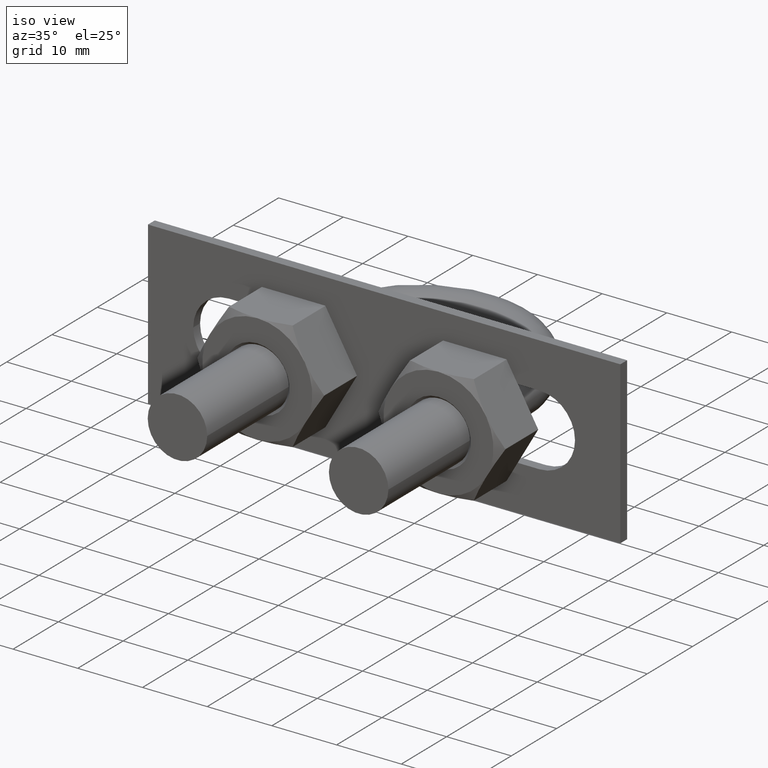
[diagram: clean part render]
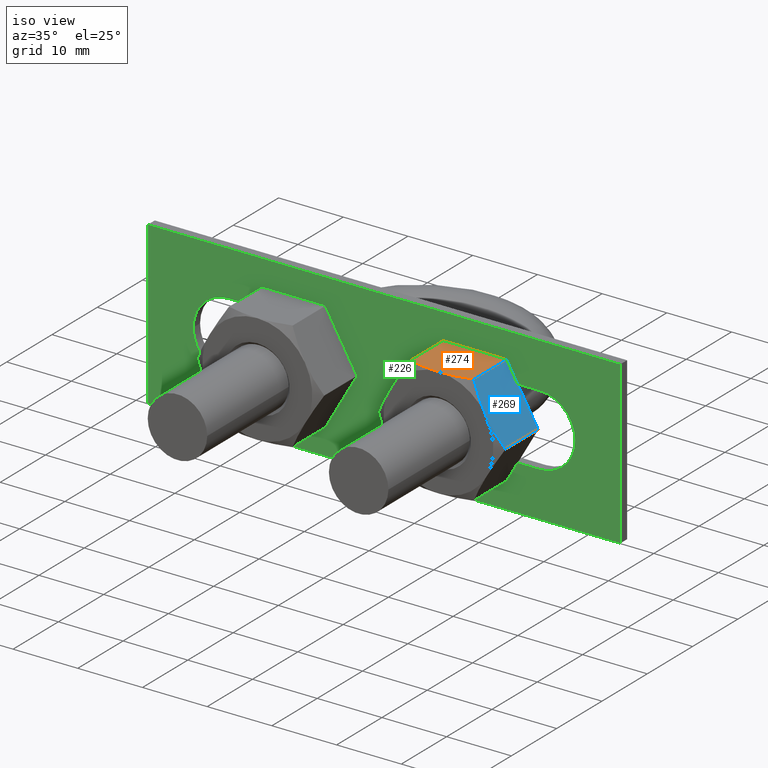
[diagram: same view with three faces highlighted in distinct colors, each labeled with its STEP entity id]
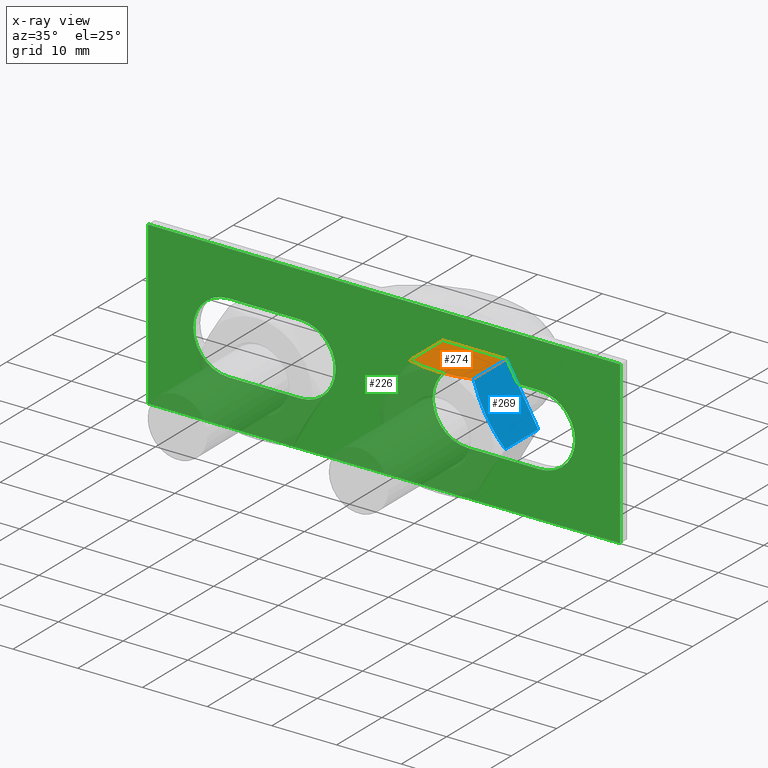
[diagram: x-ray of the same camera — body ghosted, the three highlighted faces saturated]
A machine part, iso view with three faces highlighted in distinct colors.
The next image is the same camera in x-ray (body ghosted, the three faces saturated) — at least one of them is partly hidden behind the body in this view.
Their STEP definitions:

[orange] entity #274 — the highlighted planar face has unit normal (0, -0, -1).
#274 = ADVANCED_FACE( '', ( #417 ), #418, .F. );
#417 = FACE_OUTER_BOUND( '', #737, .T. );
#418 = PLANE( '', #738 );
#737 = EDGE_LOOP( '', ( #1187, #1188, #1189, #1190, #1191 ) );
#738 = AXIS2_PLACEMENT_3D( '', #1192, #1193, #1194 );
#1187 = ORIENTED_EDGE( '', *, *, #1438, .F. );
#1188 = ORIENTED_EDGE( '', *, *, #1405, .F. );
#1189 = ORIENTED_EDGE( '', *, *, #1439, .F. );
#1190 = ORIENTED_EDGE( '', *, *, #1422, .F. );
#1191 = ORIENTED_EDGE( '', *, *, #1433, .F. );
#1192 = CARTESIAN_POINT( '', ( 9.09252271188818, -2.38000000000001, 8.50000000000000 ) );
#1193 = DIRECTION( '', ( 3.74915180455534E-033, -2.29561756065155E-049, -1.00000000000000 ) );
#1194 = DIRECTION( '', ( -6.12303176911189E-017, -1.00000000000000, 0.000000000000000 ) );
#1405 = EDGE_CURVE( '', #1634, #1637, #1638, .T. );
#1422 = EDGE_CURVE( '', #1666, #1668, #1669, .T. );
#1433 = EDGE_CURVE( '', #1687, #1666, #1689, .T. );
#1438 = EDGE_CURVE( '', #1637, #1687, #1696, .T. );
#1439 = EDGE_CURVE( '', #1668, #1634, #1697, .F. );
#1634 = VERTEX_POINT( '', #2034 );
#1637 = VERTEX_POINT( '', #2037 );
#1638 = B_SPLINE_CURVE_WITH_KNOTS( '', 3, ( #2038, #2039, #2040, #2041, #2042, #2043 ), .UNSPECIFIED., .F., .F., ( 4, 2, 4 ), ( 0.0107224888714710, 0.0132032657403443, 0.0156840426092177 ), .UNSPECIFIED. );
#1666 = VERTEX_POINT( '', #2093 );
#1668 = VERTEX_POINT( '', #2095 );
#1669 = LINE( '', #2096, #2097 );
#1687 = VERTEX_POINT( '', #2119 );
#1689 = LINE( '', #2121, #2122 );
#1696 = B_SPLINE_CURVE_WITH_KNOTS( '', 3, ( #2142, #2143, #2144, #2145, #2146, #2147 ), .UNSPECIFIED., .F., .F., ( 4, 2, 4 ), ( 0.0156840426092177, 0.0181633795370703, 0.0206427164649230 ), .UNSPECIFIED. );
#1697 = LINE( '', #2148, #2149 );
#2034 = CARTESIAN_POINT( '', ( 18.8774993593029, -9.62944465005349, 8.50000000000000 ) );
#2037 = CARTESIAN_POINT( '', ( 14.0000000000000, -10.3800000000000, 8.50000000000000 ) );
#2038 = CARTESIAN_POINT( '', ( 18.8774993593029, -9.62944465005349, 8.50000000000000 ) );
#2039 = CARTESIAN_POINT( '', ( 18.0828739329411, -9.85777990695860, 8.50000000000000 ) );
#2040 = CARTESIAN_POINT( '', ( 17.2812026223240, -10.0463452882827, 8.50000000000000 ) );
#2041 = CARTESIAN_POINT( '', ( 15.6573811694461, -10.3078850822183, 8.50000000000000 ) );
#2042 = CARTESIAN_POINT( '', ( 14.8350787536116, -10.3800000000000, 8.50000000000000 ) );
#2043 = CARTESIAN_POINT( '', ( 14.0000000000000, -10.3800000000000, 8.50000000000000 ) );
#2093 = CARTESIAN_POINT( '', ( 9.12250064069712, -2.38000000000001, 8.50000000000000 ) );
#2095 = CARTESIAN_POINT( '', ( 18.8774993593029, -2.38000000000001, 8.50000000000000 ) );
#2096 = CARTESIAN_POINT( '', ( 4.20000000000000, -2.38000000000001, 8.50000000000000 ) );
#2097 = VECTOR( '', #2418, 1000.00000000000 );
#2119 = CARTESIAN_POINT( '', ( 9.12250064069712, -9.62944465005349, 8.50000000000000 ) );
#2121 = CARTESIAN_POINT( '', ( 9.12250064069712, -2.38000000000001, 8.50000000000000 ) );
#2122 = VECTOR( '', #2441, 1000.00000000000 );
#2142 = CARTESIAN_POINT( '', ( 14.0000000000000, -10.3800000000000, 8.50000000000000 ) );
#2143 = CARTESIAN_POINT( '', ( 13.1654059591282, -10.3800000000000, 8.50000000000000 ) );
#2144 = CARTESIAN_POINT( '', ( 12.3409017267985, -10.3076895388738, 8.50000000000000 ) );
#2145 = CARTESIAN_POINT( '', ( 10.7171925770404, -10.0460056252267, 8.50000000000000 ) );
#2146 = CARTESIAN_POINT( '', ( 9.91614218777279, -9.85749718969067, 8.50000000000000 ) );
#2147 = CARTESIAN_POINT( '', ( 9.12250064069712, -9.62944465005349, 8.50000000000000 ) );
#2148 = CARTESIAN_POINT( '', ( 18.8774993593029, -2.38000000000001, 8.50000000000000 ) );
#2149 = VECTOR( '', #2446, 1000.00000000000 );
#2418 = DIRECTION( '', ( 1.00000000000000, -6.12303176911189E-017, 3.74915180455534E-033 ) );
#2441 = DIRECTION( '', ( 6.12303176911189E-017, 1.00000000000000, -4.95179021115217E-066 ) );
#2446 = DIRECTION( '', ( 6.12303176911189E-017, 1.00000000000000, -4.95179021115217E-066 ) );

[blue] entity #269 — the highlighted planar face has unit normal (-0.866, 0, -0.5).
#269 = ADVANCED_FACE( '', ( #406 ), #407, .F. );
#406 = FACE_OUTER_BOUND( '', #726, .T. );
#407 = PLANE( '', #727 );
#726 = EDGE_LOOP( '', ( #1142, #1143, #1144, #1145, #1146 ) );
#727 = AXIS2_PLACEMENT_3D( '', #1147, #1148, #1149 );
#1142 = ORIENTED_EDGE( '', *, *, #1407, .F. );
#1143 = ORIENTED_EDGE( '', *, *, #1414, .F. );
#1144 = ORIENTED_EDGE( '', *, *, #1415, .F. );
#1145 = ORIENTED_EDGE( '', *, *, #1416, .F. );
#1146 = ORIENTED_EDGE( '', *, *, #1417, .F. );
#1147 = CARTESIAN_POINT( '', ( 18.9074772881118, -2.38000000000001, 8.50000000000000 ) );
#1148 = DIRECTION( '', ( -0.866025403784439, 5.30270106023007E-017, -0.500000000000000 ) );
#1149 = DIRECTION( '', ( -0.500000000000000, 3.06151588455594E-017, 0.866025403784439 ) );
#1407 = EDGE_CURVE( '', #1639, #1635, #1641, .T. );
#1414 = EDGE_CURVE( '', #1653, #1639, #1654, .T. );
#1415 = EDGE_CURVE( '', #1655, #1653, #1656, .F. );
#1416 = EDGE_CURVE( '', #1657, #1655, #1658, .T. );
#1417 = EDGE_CURVE( '', #1635, #1657, #1659, .T. );
#1635 = VERTEX_POINT( '', #2035 );
#1639 = VERTEX_POINT( '', #2044 );
#1641 = B_SPLINE_CURVE_WITH_KNOTS( '', 3, ( #2046, #2047, #2048, #2049, #2050, #2051, #2052, #2053 ), .UNSPECIFIED., .F., .F., ( 4, 2, 2, 4 ), ( 0.00493506423428099, 0.00616384870526321, 0.00739263317624543, 0.00985020211820987 ), .UNSPECIFIED. );
#1653 = VERTEX_POINT( '', #2065 );
#1654 = B_SPLINE_CURVE_WITH_KNOTS( '', 3, ( #2066, #2067, #2068, #2069, #2070, #2071 ), .UNSPECIFIED., .F., .F., ( 4, 2, 4 ), ( 4.83064900407440E-007, 0.00246777364959070, 0.00493506423428099 ), .UNSPECIFIED. );
#1655 = VERTEX_POINT( '', #2072 );
#1656 = LINE( '', #2073, #2074 );
#1657 = VERTEX_POINT( '', #2075 );
#1658 = LINE( '', #2076, #2077 );
#1659 = LINE( '', #2078, #2079 );
#2035 = CARTESIAN_POINT( '', ( 18.9224662525163, -9.62944465005349, 8.47403835209862 ) );
#2044 = CARTESIAN_POINT( '', ( 21.3612159321677, -10.3800000000000, 4.25000000000000 ) );
#2046 = CARTESIAN_POINT( '', ( 21.3612159321677, -10.3800000000000, 4.25000000000000 ) );
#2047 = CARTESIAN_POINT( '', ( 21.1543614605610, -10.3800000000000, 4.60828245459559 ) );
#2048 = CARTESIAN_POINT( '', ( 20.9464724694540, -10.3622887918237, 4.96835674952724 ) );
#2049 = CARTESIAN_POINT( '', ( 20.5352159436566, -10.2936978063788, 5.68067394715264 ) );
#2050 = CARTESIAN_POINT( '', ( 20.3309547652762, -10.2428883495806, 6.03446468612131 ) );
#2051 = CARTESIAN_POINT( '', ( 19.7217813693342, -10.0468505986087, 7.08958395851212 ) );
#2052 = CARTESIAN_POINT( '', ( 19.3204658996231, -9.85817468726450, 7.78468274191512 ) );
#2053 = CARTESIAN_POINT( '', ( 18.9224662525163, -9.62944465005349, 8.47403835209862 ) );
#2065 = CARTESIAN_POINT( '', ( 23.7999656118192, -9.62944465005349, 0.0259616479013807 ) );
#2066 = CARTESIAN_POINT( '', ( 23.7999656118192, -9.62944465005349, 0.0259616479013786 ) );
#2067 = CARTESIAN_POINT( '', ( 23.4009132475383, -9.85877968287227, 0.717140617716312 ) );
#2068 = CARTESIAN_POINT( '', ( 22.9989787792964, -10.0475474634560, 1.41331153802454 ) );
#2069 = CARTESIAN_POINT( '', ( 22.1868332408957, -10.3085851459414, 2.81998887367487 ) );
#2070 = CARTESIAN_POINT( '', ( 21.7765614237886, -10.3800000000000, 3.53060050581790 ) );
#2071 = CARTESIAN_POINT( '', ( 21.3612159321677, -10.3800000000000, 4.25000000000000 ) );
#2072 = CARTESIAN_POINT( '', ( 23.7999656118192, -2.38000000000001, 0.0259616479013815 ) );
#2073 = CARTESIAN_POINT( '', ( 23.7999656118192, -2.38000000000001, 0.0259616479013807 ) );
#2074 = VECTOR( '', #2406, 1000.00000000000 );
#2075 = CARTESIAN_POINT( '', ( 18.9224662525163, -2.38000000000001, 8.47403835209862 ) );
#2076 = CARTESIAN_POINT( '', ( 18.9112159321677, -2.38000000000001, 8.49352447854375 ) );
#2077 = VECTOR( '', #2407, 1000.00000000000 );
#2078 = CARTESIAN_POINT( '', ( 18.9224662525163, -2.38000000000001, 8.47403835209862 ) );
#2079 = VECTOR( '', #2408, 1000.00000000000 );
#2406 = DIRECTION( '', ( 6.12303176911189E-017, 1.00000000000000, -4.95179021115217E-066 ) );
#2407 = DIRECTION( '', ( 0.500000000000000, -3.06151588455594E-017, -0.866025403784439 ) );
#2408 = DIRECTION( '', ( 6.12303176911189E-017, 1.00000000000000, -4.95179021115217E-066 ) );

[green] entity #226 — the highlighted planar face has unit normal (0, -1, 0).
#226 = ADVANCED_FACE( '', ( #310, #311, #312 ), #313, .T. );
#310 = FACE_OUTER_BOUND( '', #630, .T. );
#311 = FACE_BOUND( '', #631, .T. );
#312 = FACE_BOUND( '', #632, .T. );
#313 = PLANE( '', #633 );
#630 = EDGE_LOOP( '', ( #802, #803, #804, #805 ) );
#631 = EDGE_LOOP( '', ( #806, #807, #808, #809, #810, #811 ) );
#632 = EDGE_LOOP( '', ( #812, #813, #814, #815, #816, #817 ) );
#633 = AXIS2_PLACEMENT_3D( '', #818, #819, #820 );
#802 = ORIENTED_EDGE( '', *, *, #1304, .T. );
#803 = ORIENTED_EDGE( '', *, *, #1305, .T. );
#804 = ORIENTED_EDGE( '', *, *, #1306, .T. );
#805 = ORIENTED_EDGE( '', *, *, #1307, .T. );
#806 = ORIENTED_EDGE( '', *, *, #1308, .F. );
#807 = ORIENTED_EDGE( '', *, *, #1309, .F. );
#808 = ORIENTED_EDGE( '', *, *, #1310, .F. );
#809 = ORIENTED_EDGE( '', *, *, #1311, .F. );
#810 = ORIENTED_EDGE( '', *, *, #1312, .F. );
#811 = ORIENTED_EDGE( '', *, *, #1313, .F. );
#812 = ORIENTED_EDGE( '', *, *, #1314, .F. );
#813 = ORIENTED_EDGE( '', *, *, #1315, .F. );
#814 = ORIENTED_EDGE( '', *, *, #1316, .F. );
#815 = ORIENTED_EDGE( '', *, *, #1317, .F. );
#816 = ORIENTED_EDGE( '', *, *, #1318, .F. );
#817 = ORIENTED_EDGE( '', *, *, #1319, .F. );
#818 = CARTESIAN_POINT( '', ( -36.5000000000000, -2.38000000000000, -12.5000000000000 ) );
#819 = DIRECTION( '', ( 0.000000000000000, -1.00000000000000, 6.12303176911189E-017 ) );
#820 = DIRECTION( '', ( 0.000000000000000, -6.12303176911189E-017, -1.00000000000000 ) );
#1304 = EDGE_CURVE( '', #1468, #1469, #1470, .T. );
#1305 = EDGE_CURVE( '', #1469, #1471, #1472, .T. );
#1306 = EDGE_CURVE( '', #1471, #1473, #1474, .T. );
#1307 = EDGE_CURVE( '', #1473, #1468, #1475, .T. );
#1308 = EDGE_CURVE( '', #1476, #1477, #1478, .T. );
#1309 = EDGE_CURVE( '', #1479, #1476, #1480, .T. );
#1310 = EDGE_CURVE( '', #1481, #1479, #1482, .T. );
#1311 = EDGE_CURVE( '', #1483, #1481, #1484, .T. );
#1312 = EDGE_CURVE( '', #1485, #1483, #1486, .T. );
#1313 = EDGE_CURVE( '', #1477, #1485, #1487, .T. );
#1314 = EDGE_CURVE( '', #1488, #1489, #1490, .T. );
#1315 = EDGE_CURVE( '', #1491, #1488, #1492, .T. );
#1316 = EDGE_CURVE( '', #1493, #1491, #1494, .T. );
#1317 = EDGE_CURVE( '', #1495, #1493, #1496, .T. );
#1318 = EDGE_CURVE( '', #1497, #1495, #1498, .T. );
#1319 = EDGE_CURVE( '', #1489, #1497, #1499, .T. );
#1468 = VERTEX_POINT( '', #1750 );
#1469 = VERTEX_POINT( '', #1751 );
#1470 = LINE( '', #1752, #1753 );
#1471 = VERTEX_POINT( '', #1754 );
#1472 = LINE( '', #1755, #1756 );
#1473 = VERTEX_POINT( '', #1757 );
#1474 = LINE( '', #1758, #1759 );
#1475 = LINE( '', #1760, #1761 );
#1476 = VERTEX_POINT( '', #1762 );
#1477 = VERTEX_POINT( '', #1763 );
#1478 = CIRCLE( '', #1764, 5.50000000000000 );
#1479 = VERTEX_POINT( '', #1765 );
#1480 = CIRCLE( '', #1766, 5.50000000000000 );
#1481 = VERTEX_POINT( '', #1767 );
#1482 = LINE( '', #1768, #1769 );
#1483 = VERTEX_POINT( '', #1770 );
#1484 = CIRCLE( '', #1771, 5.50000000000000 );
#1485 = VERTEX_POINT( '', #1772 );
#1486 = CIRCLE( '', #1773, 5.50000000000000 );
#1487 = LINE( '', #1774, #1775 );
#1488 = VERTEX_POINT( '', #1776 );
#1489 = VERTEX_POINT( '', #1777 );
#1490 = LINE( '', #1778, #1779 );
#1491 = VERTEX_POINT( '', #1780 );
#1492 = CIRCLE( '', #1781, 5.50000000000000 );
#1493 = VERTEX_POINT( '', #1782 );
#1494 = CIRCLE( '', #1783, 5.50000000000000 );
#1495 = VERTEX_POINT( '', #1784 );
#1496 = LINE( '', #1785, #1786 );
#1497 = VERTEX_POINT( '', #1787 );
#1498 = CIRCLE( '', #1788, 5.50000000000000 );
#1499 = CIRCLE( '', #1789, 5.50000000000000 );
#1750 = CARTESIAN_POINT( '', ( -36.5000000000000, -2.38000000000000, 12.5000000000000 ) );
#1751 = CARTESIAN_POINT( '', ( -36.5000000000000, -2.38000000000000, -12.5000000000000 ) );
#1752 = CARTESIAN_POINT( '', ( -36.5000000000000, -2.38000000000000, 12.5000000000000 ) );
#1753 = VECTOR( '', #2218, 1000.00000000000 );
#1754 = CARTESIAN_POINT( '', ( 36.5000000000000, -2.38000000000000, -12.5000000000000 ) );
#1755 = CARTESIAN_POINT( '', ( -36.5000000000000, -2.38000000000000, -12.5000000000000 ) );
#1756 = VECTOR( '', #2219, 1000.00000000000 );
#1757 = CARTESIAN_POINT( '', ( 36.5000000000000, -2.38000000000000, 12.5000000000000 ) );
#1758 = CARTESIAN_POINT( '', ( 36.5000000000000, -2.38000000000000, -12.5000000000000 ) );
#1759 = VECTOR( '', #2220, 1000.00000000000 );
#1760 = CARTESIAN_POINT( '', ( 36.5000000000000, -2.38000000000000, 12.5000000000000 ) );
#1761 = VECTOR( '', #2221, 1000.00000000000 );
#1762 = CARTESIAN_POINT( '', ( -29.5000000000000, -2.38001000000000, -3.46944695195361E-015 ) );
#1763 = CARTESIAN_POINT( '', ( -24.0000000000000, -2.38001000000000, -5.50000000000000 ) );
#1764 = AXIS2_PLACEMENT_3D( '', #2222, #2223, #2224 );
#1765 = CARTESIAN_POINT( '', ( -24.0000000000000, -2.38001000000000, 5.49999999999999 ) );
#1766 = AXIS2_PLACEMENT_3D( '', #2225, #2226, #2227 );
#1767 = CARTESIAN_POINT( '', ( -13.0000000000000, -2.38001000000000, 5.49999999999999 ) );
#1768 = CARTESIAN_POINT( '', ( -13.0000000000000, -2.38001000000000, 5.49999999999999 ) );
#1769 = VECTOR( '', #2228, 1000.00000000000 );
#1770 = CARTESIAN_POINT( '', ( -7.50000000000001, -2.38001000000000, -3.46944695195361E-015 ) );
#1771 = AXIS2_PLACEMENT_3D( '', #2229, #2230, #2231 );
#1772 = CARTESIAN_POINT( '', ( -13.0000000000000, -2.38001000000000, -5.50000000000000 ) );
#1773 = AXIS2_PLACEMENT_3D( '', #2232, #2233, #2234 );
#1774 = CARTESIAN_POINT( '', ( -24.0000000000000, -2.38001000000000, -5.50000000000000 ) );
#1775 = VECTOR( '', #2235, 1000.00000000000 );
#1776 = CARTESIAN_POINT( '', ( 13.0000000000000, -2.38001000000000, -5.50000000000000 ) );
#1777 = CARTESIAN_POINT( '', ( 24.0000000000000, -2.38001000000000, -5.50000000000000 ) );
#1778 = CARTESIAN_POINT( '', ( 13.0000000000000, -2.38001000000000, -5.50000000000000 ) );
#1779 = VECTOR( '', #2236, 1000.00000000000 );
#1780 = CARTESIAN_POINT( '', ( 7.49999999999999, -2.38000000000000, -1.73472408827998E-015 ) );
#1781 = AXIS2_PLACEMENT_3D( '', #2237, #2238, #2239 );
#1782 = CARTESIAN_POINT( '', ( 13.0000000000000, -2.38000000000000, 5.50000000000000 ) );
#1783 = AXIS2_PLACEMENT_3D( '', #2240, #2241, #2242 );
#1784 = CARTESIAN_POINT( '', ( 24.0000000000000, -2.38001000000000, 5.50000000000000 ) );
#1785 = CARTESIAN_POINT( '', ( 24.0000000000000, -2.38001000000000, 5.50000000000000 ) );
#1786 = VECTOR( '', #2243, 1000.00000000000 );
#1787 = CARTESIAN_POINT( '', ( 29.5000000000000, -2.38000000000000, -1.73472408827998E-015 ) );
#1788 = AXIS2_PLACEMENT_3D( '', #2244, #2245, #2246 );
#1789 = AXIS2_PLACEMENT_3D( '', #2247, #2248, #2249 );
#2218 = DIRECTION( '', ( 0.000000000000000, -6.12303176911189E-017, -1.00000000000000 ) );
#2219 = DIRECTION( '', ( 1.00000000000000, 0.000000000000000, 0.000000000000000 ) );
#2220 = DIRECTION( '', ( 0.000000000000000, 6.12303176911189E-017, 1.00000000000000 ) );
#2221 = DIRECTION( '', ( -1.00000000000000, 0.000000000000000, 0.000000000000000 ) );
#2222 = CARTESIAN_POINT( '', ( -24.0000000000000, -2.38001000000000, -3.46944695195361E-015 ) );
#2223 = DIRECTION( '', ( 0.000000000000000, -1.00000000000000, 8.09430844635826E-017 ) );
#2224 = DIRECTION( '', ( -1.00000000000000, 0.000000000000000, 0.000000000000000 ) );
#2225 = CARTESIAN_POINT( '', ( -24.0000000000000, -2.38001000000000, -3.46944695195361E-015 ) );
#2226 = DIRECTION( '', ( 0.000000000000000, -1.00000000000000, 8.09430844635826E-017 ) );
#2227 = DIRECTION( '', ( 0.000000000000000, 8.09430844635826E-017, 1.00000000000000 ) );
#2228 = DIRECTION( '', ( -1.00000000000000, 0.000000000000000, 0.000000000000000 ) );
#2229 = CARTESIAN_POINT( '', ( -13.0000000000000, -2.38001000000000, -3.46944695195361E-015 ) );
#2230 = DIRECTION( '', ( 0.000000000000000, -1.00000000000000, 8.09430844635826E-017 ) );
#2231 = DIRECTION( '', ( 1.00000000000000, 0.000000000000000, 0.000000000000000 ) );
#2232 = CARTESIAN_POINT( '', ( -13.0000000000000, -2.38001000000000, -3.46944695195361E-015 ) );
#2233 = DIRECTION( '', ( 0.000000000000000, -1.00000000000000, 8.09430844635826E-017 ) );
#2234 = DIRECTION( '', ( 0.000000000000000, -8.09430844635826E-017, -1.00000000000000 ) );
#2235 = DIRECTION( '', ( 1.00000000000000, 0.000000000000000, 0.000000000000000 ) );
#2236 = DIRECTION( '', ( 1.00000000000000, 0.000000000000000, -1.34880223661361E-065 ) );
#2237 = CARTESIAN_POINT( '', ( 13.0000000000000, -2.38000000000000, -1.73472408827998E-015 ) );
#2238 = DIRECTION( '', ( 0.000000000000000, -1.00000000000000, 6.12303176911189E-017 ) );
#2239 = DIRECTION( '', ( 0.000000000000000, -6.12303176911189E-017, -1.00000000000000 ) );
#2240 = CARTESIAN_POINT( '', ( 13.0000000000000, -2.38000000000000, -1.73472408827998E-015 ) );
#2241 = DIRECTION( '', ( 0.000000000000000, -1.00000000000000, 6.12303176911189E-017 ) );
#2242 = DIRECTION( '', ( 0.000000000000000, -6.12303176911189E-017, -1.00000000000000 ) );
#2243 = DIRECTION( '', ( -1.00000000000000, 0.000000000000000, 1.34880223661361E-065 ) );
#2244 = CARTESIAN_POINT( '', ( 24.0000000000000, -2.38000000000000, -1.73472408827998E-015 ) );
#2245 = DIRECTION( '', ( 0.000000000000000, -1.00000000000000, 6.12303176911189E-017 ) );
#2246 = DIRECTION( '', ( 0.000000000000000, -6.12303176911189E-017, -1.00000000000000 ) );
#2247 = CARTESIAN_POINT( '', ( 24.0000000000000, -2.38000000000000, -1.73472408827998E-015 ) );
#2248 = DIRECTION( '', ( 0.000000000000000, -1.00000000000000, 6.12303176911189E-017 ) );
#2249 = DIRECTION( '', ( 0.000000000000000, -6.12303176911189E-017, -1.00000000000000 ) );